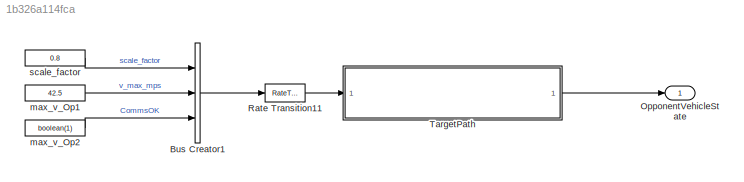
MODEL slx_1b326a114fca
KIND model
CONFIG StartFcn = dictObj = Simulink.data.dictionary.open('ScenarioDefinition.sldd');\nsecObj = getSection(dictObj, 'Design Data');\nenObj = getEntry(secObj, 'Raceline_Op1');\ntemp = getValue(enObj);\nset_param('trajectoryReplay/max_v_Op1','Value',num2str(max(temp.vx_mps)));\n\nclose(dictObj);\nclear dictObj secObj enObj temp;
WORKSPACE source: MAT-file member
WORKSPACE MCOS: class17 (value not decoded)
BLOCK [BusCreator] Bus Creator1
  DisplayOption = bar
  InheritFromInputs = on
  Inputs = 3
  OutDataTypeStr = Bus: Planning_ControlPerformance_Feedback
  Ports = [3, 1]
BLOCK [Outport] OpponentVehicleState
  IconDisplay = Port number
  OutDataTypeStr = Bus: V2X_Vehicle_Sim
BLOCK [RateTransition] Rate Transition11
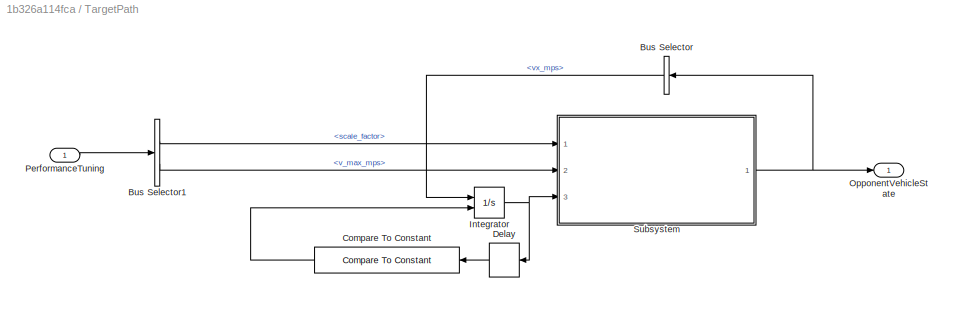
BLOCK [SubSystem] TargetPath
  Ports = [1, 1]
  RequestExecContextInheritance = off
  SystemSampleTime = tSSlow
BLOCK [BusSelector] TargetPath/Bus Selector
  OutputAsBus = off
  OutputSignals = vx_mps
  Ports = [1, 1]
BLOCK [BusSelector] TargetPath/Bus Selector1
  OutputAsBus = off
  OutputSignals = scale_factor,v_max_mps
  Ports = [1, 2]
BLOCK [Reference] TargetPath/Compare To Constant  REF=simulink/Logic and Bit
Operations/Compare
To Constant
  Ports = [1, 1]
  SourceBlock = simulink/Logic and Bit\nOperations/Compare\nTo Constant
  SourceProductBaseCode = SL
  SourceProductName = Simulink
  SourceType = Compare To Constant
BLOCK [Delay] TargetPath/Delay
  DelayLength = 1
  InputPortMap = u0
  Ports = [1, 1]
BLOCK [Integrator] TargetPath/Integrator
  ExternalReset = rising
  InitialCondition = s0_m
  Ports = [2, 1]
BLOCK [Outport] TargetPath/OpponentVehicleState
  IconDisplay = Port number
BLOCK [Inport] TargetPath/PerformanceTuning
  IconDisplay = Port number
  OutDataTypeStr = Bus: Planning_ControlPerformance_Feedback
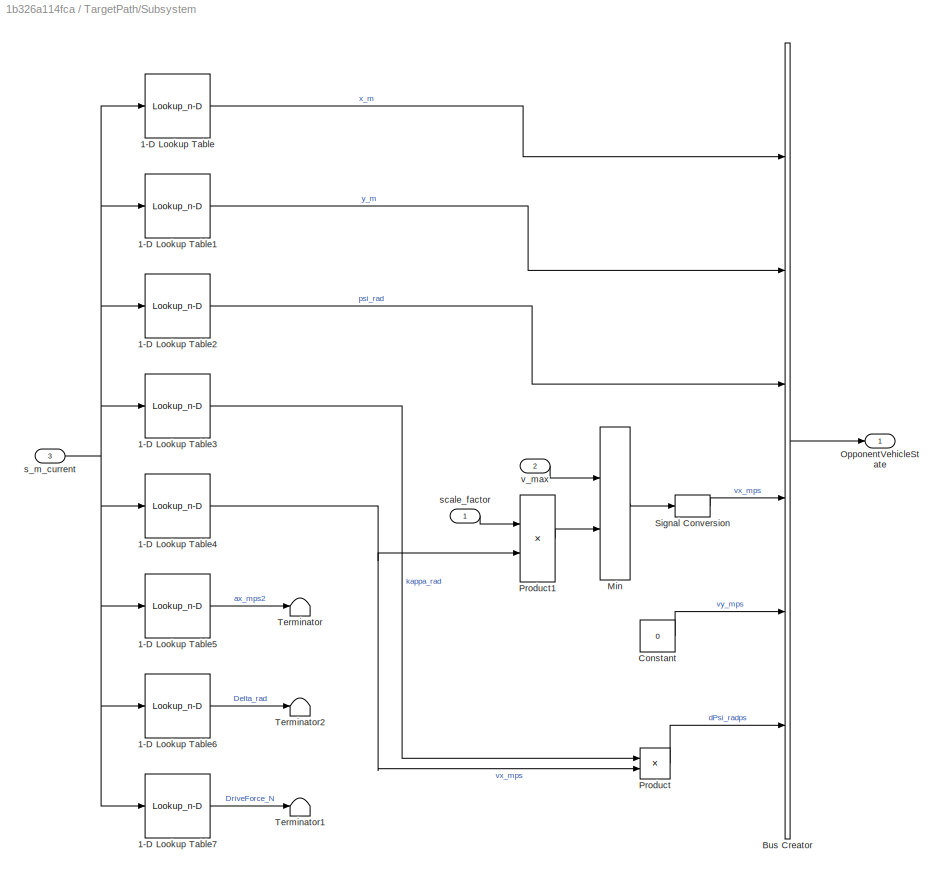
BLOCK [SubSystem] TargetPath/Subsystem
  Ports = [3, 1]
  RequestExecContextInheritance = off
BLOCK [Lookup_n-D] TargetPath/Subsystem/1-D Lookup Table
  BreakpointsForDimension1 = s_m_Op
  InternalRulePriority = Speed
  NumberOfTableDimensions = 1
  Ports = [1, 1]
  RndMeth = Simplest
  Table = x_m_Op
BLOCK [Lookup_n-D] TargetPath/Subsystem/1-D Lookup Table1
  BreakpointsForDimension1 = s_m_Op
  InternalRulePriority = Speed
  NumberOfTableDimensions = 1
  Ports = [1, 1]
  RndMeth = Simplest
  Table = y_m_Op
BLOCK [Lookup_n-D] TargetPath/Subsystem/1-D Lookup Table2
  BreakpointsForDimension1 = s_m_Op
  InternalRulePriority = Speed
  NumberOfTableDimensions = 1
  Ports = [1, 1]
  RndMeth = Simplest
  Table = psi_rad_Op
BLOCK [Lookup_n-D] TargetPath/Subsystem/1-D Lookup Table3
  BreakpointsForDimension1 = s_m_Op
  InternalRulePriority = Speed
  NumberOfTableDimensions = 1
  Ports = [1, 1]
  RndMeth = Simplest
  Table = kappa_radpm_Op
BLOCK [Lookup_n-D] TargetPath/Subsystem/1-D Lookup Table4
  BreakpointsForDimension1 = s_m_Op
  InternalRulePriority = Speed
  NumberOfTableDimensions = 1
  Ports = [1, 1]
  RndMeth = Simplest
  Table = vx_mps_Op
BLOCK [Lookup_n-D] TargetPath/Subsystem/1-D Lookup Table5
  BreakpointsForDimension1 = s_m_Op
  Commented = on
  InternalRulePriority = Speed
  NumberOfTableDimensions = 1
  Ports = [1, 1]
  RndMeth = Simplest
  Table = ax_mps2_Op
BLOCK [Lookup_n-D] TargetPath/Subsystem/1-D Lookup Table6
  BreakpointsForDimension1 = s_m_Op
  Commented = on
  InternalRulePriority = Speed
  NumberOfTableDimensions = 1
  Ports = [1, 1]
  RndMeth = Simplest
  Table = delta_rad_Op
BLOCK [Lookup_n-D] TargetPath/Subsystem/1-D Lookup Table7
  BreakpointsForDimension1 = s_m_Op
  Commented = on
  InternalRulePriority = Speed
  NumberOfTableDimensions = 1
  Ports = [1, 1]
  RndMeth = Simplest
  Table = F_N_Op
BLOCK [BusCreator] TargetPath/Subsystem/Bus Creator
  DisplayOption = bar
  InheritFromInputs = on
  Inputs = 6
  OutDataTypeStr = Bus: V2X_Vehicle_Sim
  Ports = [6, 1]
BLOCK [Constant] TargetPath/Subsystem/Constant
  Value = 0
BLOCK [MinMax] TargetPath/Subsystem/Min
  InputSameDT = off
  Inputs = 2
  Ports = [2, 1]
  SaturateOnIntegerOverflow = off
BLOCK [Outport] TargetPath/Subsystem/OpponentVehicleState
  IconDisplay = Port number
BLOCK [Product] TargetPath/Subsystem/Product
  InputSameDT = off
  OutDataTypeStr = Inherit: Inherit via internal rule
  Ports = [2, 1]
  RndMeth = Floor
  SaturateOnIntegerOverflow = off
BLOCK [Product] TargetPath/Subsystem/Product1
  InputSameDT = off
  OutDataTypeStr = Inherit: Inherit via internal rule
  Ports = [2, 1]
  RndMeth = Floor
  SaturateOnIntegerOverflow = off
BLOCK [SignalConversion] TargetPath/Subsystem/Signal Conversion
  OverrideOpt = off
BLOCK [Terminator] TargetPath/Subsystem/Terminator
  Commented = on
BLOCK [Terminator] TargetPath/Subsystem/Terminator1
  Commented = on
BLOCK [Terminator] TargetPath/Subsystem/Terminator2
  Commented = on
BLOCK [Inport] TargetPath/Subsystem/s_m_current
  IconDisplay = Port number
  Port = 3
BLOCK [Inport] TargetPath/Subsystem/scale_factor
  IconDisplay = Port number
BLOCK [Inport] TargetPath/Subsystem/v_max
  IconDisplay = Port number
  Port = 2
BLOCK [Constant] max_v_Op1
  Value = 42.5
BLOCK [Constant] max_v_Op2
  Value = boolean(1)
BLOCK [Constant] scale_factor
  Value = 0.8
LINE Bus Creator1:1 -> Rate Transition11:1
LINE Rate Transition11:1 -> TargetPath:1
LINE TargetPath/Bus Selector1:1 -> TargetPath/Subsystem:1
LINE TargetPath/Bus Selector1:2 -> TargetPath/Subsystem:2
LINE TargetPath/Bus Selector:1 -> TargetPath/Integrator:1
LINE TargetPath/Compare To Constant:1 -> TargetPath/Integrator:2
LINE TargetPath/Delay:1 -> TargetPath/Compare To Constant:1
NET TargetPath/Integrator:1 -> TargetPath/Delay:1, TargetPath/Subsystem:3
LINE TargetPath/PerformanceTuning:1 -> TargetPath/Bus Selector1:1
LINE TargetPath/Subsystem/1-D Lookup Table1:1 -> TargetPath/Subsystem/Bus Creator:2
LINE TargetPath/Subsystem/1-D Lookup Table2:1 -> TargetPath/Subsystem/Bus Creator:3
LINE TargetPath/Subsystem/1-D Lookup Table3:1 -> TargetPath/Subsystem/Product:1
NET TargetPath/Subsystem/1-D Lookup Table4:1 -> TargetPath/Subsystem/Product1:2, TargetPath/Subsystem/Product:2
LINE TargetPath/Subsystem/1-D Lookup Table5:1 -> TargetPath/Subsystem/Terminator:1
LINE TargetPath/Subsystem/1-D Lookup Table6:1 -> TargetPath/Subsystem/Terminator2:1
LINE TargetPath/Subsystem/1-D Lookup Table7:1 -> TargetPath/Subsystem/Terminator1:1
LINE TargetPath/Subsystem/1-D Lookup Table:1 -> TargetPath/Subsystem/Bus Creator:1
LINE TargetPath/Subsystem/Bus Creator:1 -> TargetPath/Subsystem/OpponentVehicleState:1
LINE TargetPath/Subsystem/Constant:1 -> TargetPath/Subsystem/Bus Creator:5
LINE TargetPath/Subsystem/Min:1 -> TargetPath/Subsystem/Signal Conversion:1
LINE TargetPath/Subsystem/Product1:1 -> TargetPath/Subsystem/Min:2
LINE TargetPath/Subsystem/Product:1 -> TargetPath/Subsystem/Bus Creator:6
LINE TargetPath/Subsystem/Signal Conversion:1 -> TargetPath/Subsystem/Bus Creator:4
NET TargetPath/Subsystem/s_m_current:1 -> TargetPath/Subsystem/1-D Lookup Table1:1, TargetPath/Subsystem/1-D Lookup Table2:1, TargetPath/Subsystem/1-D Lookup Table3:1, TargetPath/Subsystem/1-D Lookup Table4:1, TargetPath/Subsystem/1-D Lookup Table5:1, TargetPath/Subsystem/1-D Lookup Table6:1, TargetPath/Subsystem/1-D Lookup Table7:1, TargetPath/Subsystem/1-D Lookup Table:1
LINE TargetPath/Subsystem/scale_factor:1 -> TargetPath/Subsystem/Product1:1
LINE TargetPath/Subsystem/v_max:1 -> TargetPath/Subsystem/Min:1
NET TargetPath/Subsystem:1 -> TargetPath/Bus Selector:1, TargetPath/OpponentVehicleState:1
LINE TargetPath:1 -> OpponentVehicleState:1
LINE max_v_Op1:1 -> Bus Creator1:2
LINE max_v_Op2:1 -> Bus Creator1:3
LINE scale_factor:1 -> Bus Creator1:1
note: NET lines group one-source signal fan-out (src -> all destinations, sorted); 1:1 wires keep LINE
